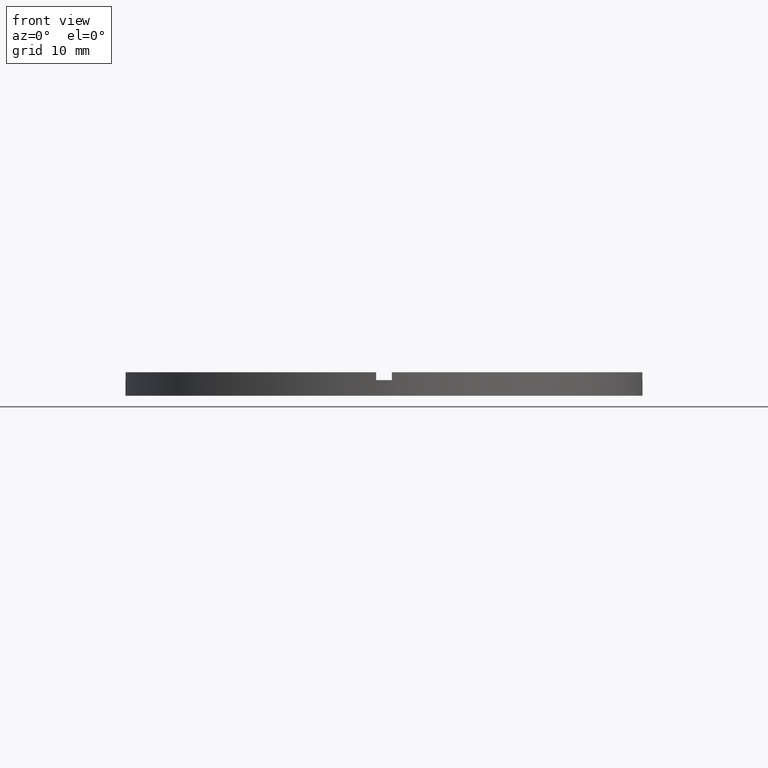
[diagram: clean part render]
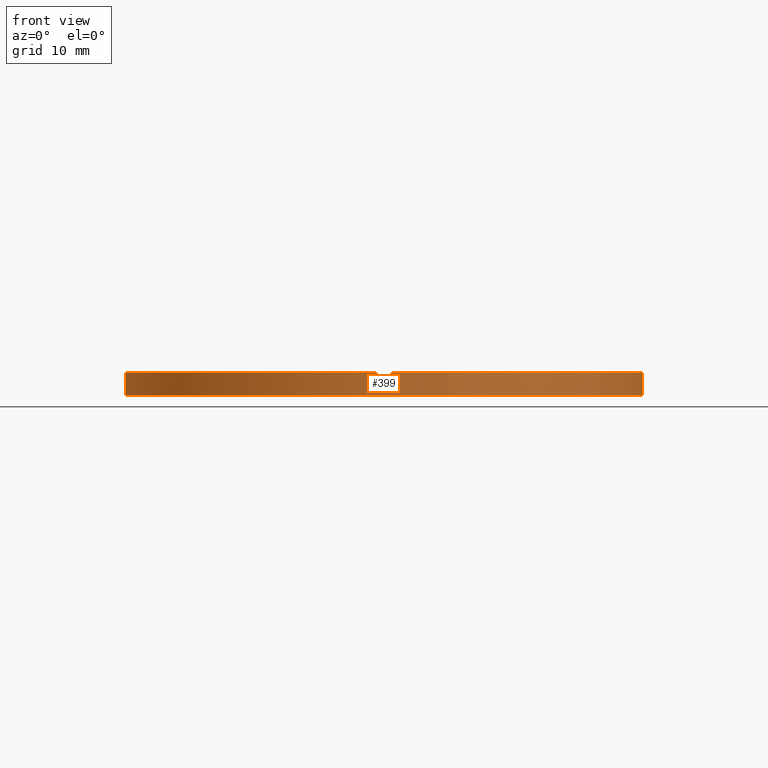
[diagram: same view with one face highlighted and labeled with its STEP entity id]
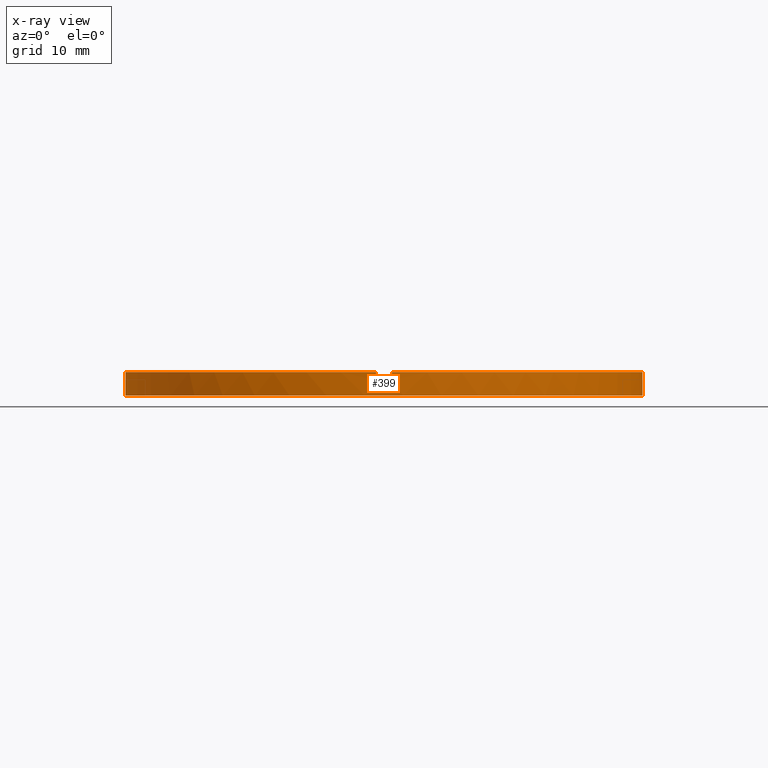
[diagram: x-ray of the same camera — body ghosted, the highlighted face saturated]
A machine part, front view. The second image highlights one B-rep face of the part: STEP entity #399.
The next image is the same camera in x-ray: the body ghosted, the highlighted face saturated — about 0% of this face is hidden behind the body in this view.
In plain terms, the highlighted cylindrical surface (partial cylindrical patch) has radius 33 mm, axis along (-0, -0, -1).
Its self-contained STEP definition (entity closure, byte-faithful):
#4 = DIRECTION ( 'NONE',  ( 0.000000000000000000, 0.000000000000000000, 1.000000000000000000 ) ) ;
#8 = EDGE_CURVE ( 'NONE', #237, #100, #144, .T. ) ;
#13 = DIRECTION ( 'NONE',  ( 1.000000000000000000, 0.000000000000000000, 0.000000000000000000 ) ) ;
#25 = ORIENTED_EDGE ( 'NONE', *, *, #500, .T. ) ;
#30 = DIRECTION ( 'NONE',  ( 1.000000000000000000, 0.000000000000000000, 0.000000000000000000 ) ) ;
#31 = ORIENTED_EDGE ( 'NONE', *, *, #497, .F. ) ;
#36 = CARTESIAN_POINT ( 'NONE',  ( 0.000000000000000000, 0.000000000000000000, 2.000000000000000000 ) ) ;
#40 = CIRCLE ( 'NONE', #687, 33.00000000000000000 ) ;
#52 = AXIS2_PLACEMENT_3D ( 'NONE', #756, #466, #13 ) ;
#54 = CIRCLE ( 'NONE', #240, 33.00000000000000000 ) ;
#55 = LINE ( 'NONE', #604, #82 ) ;
#63 = VECTOR ( 'NONE', #197, 1000.000000000000000 ) ;
#66 = LINE ( 'NONE', #693, #337 ) ;
#67 = CIRCLE ( 'NONE', #767, 33.00000000000000000 ) ;
#69 = FACE_OUTER_BOUND ( 'NONE', #189, .T. ) ;
#70 = DIRECTION ( 'NONE',  ( -0.000000000000000000, 0.000000000000000000, 1.000000000000000000 ) ) ;
#74 = LINE ( 'NONE', #202, #63 ) ;
#82 = VECTOR ( 'NONE', #777, 1000.000000000000000 ) ;
#89 = ORIENTED_EDGE ( 'NONE', *, *, #292, .F. ) ;
#90 = CIRCLE ( 'NONE', #352, 33.00000000000000000 ) ;
#94 = LINE ( 'NONE', #759, #581 ) ;
#97 = EDGE_CURVE ( 'NONE', #237, #755, #143, .T. ) ;
#100 = VERTEX_POINT ( 'NONE', #505 ) ;
#108 = VERTEX_POINT ( 'NONE', #164 ) ;
#135 = ORIENTED_EDGE ( 'NONE', *, *, #403, .F. ) ;
#141 = DIRECTION ( 'NONE',  ( 1.000000000000000000, 0.000000000000000000, 0.000000000000000000 ) ) ;
#143 = CIRCLE ( 'NONE', #441, 33.00000000000000000 ) ;
#144 = LINE ( 'NONE', #453, #406 ) ;
#154 = CARTESIAN_POINT ( 'NONE',  ( -1.000000000000160982, -32.98484500494128469, 3.000000000000000000 ) ) ;
#159 = CARTESIAN_POINT ( 'NONE',  ( 0.000000000000000000, 0.000000000000000000, 2.000000000000000000 ) ) ;
#164 = CARTESIAN_POINT ( 'NONE',  ( 32.98484500494128469, -1.000000000000158318, 2.000000000000000000 ) ) ;
#172 = DIRECTION ( 'NONE',  ( 1.000000000000000000, 0.000000000000000000, 0.000000000000000000 ) ) ;
#179 = EDGE_CURVE ( 'NONE', #108, #380, #54, .T. ) ;
#189 = EDGE_LOOP ( 'NONE', ( #31, #651, #25, #461, #706, #135, #719, #89, #665, #395, #615, #386 ) ) ;
#197 = DIRECTION ( 'NONE',  ( -0.000000000000000000, -0.000000000000000000, -1.000000000000000000 ) ) ;
#200 = EDGE_CURVE ( 'NONE', #565, #557, #94, .T. ) ;
#202 = CARTESIAN_POINT ( 'NONE',  ( 33.00000000000000000, 4.041334437186266200E-15, 3.000000000000000000 ) ) ;
#203 = DIRECTION ( 'NONE',  ( 1.000000000000000000, 0.000000000000000000, 0.000000000000000000 ) ) ;
#209 = DIRECTION ( 'NONE',  ( 1.000000000000000000, 0.000000000000000000, 0.000000000000000000 ) ) ;
#210 = EDGE_CURVE ( 'NONE', #289, #391, #55, .T. ) ;
#237 = VERTEX_POINT ( 'NONE', #769 ) ;
#239 = DIRECTION ( 'NONE',  ( -0.000000000000000000, -0.000000000000000000, -1.000000000000000000 ) ) ;
#240 = AXIS2_PLACEMENT_3D ( 'NONE', #36, #774, #141 ) ;
#278 = DIRECTION ( 'NONE',  ( -0.000000000000000000, -0.000000000000000000, -1.000000000000000000 ) ) ;
#289 = VERTEX_POINT ( 'NONE', #521 ) ;
#290 = VECTOR ( 'NONE', #428, 1000.000000000000000 ) ;
#292 = EDGE_CURVE ( 'NONE', #565, #366, #90, .T. ) ;
#297 = LINE ( 'NONE', #462, #290 ) ;
#330 = CYLINDRICAL_SURFACE ( 'NONE', #411, 33.00000000000000000 ) ;
#331 = CIRCLE ( 'NONE', #52, 33.00000000000000000 ) ;
#337 = VECTOR ( 'NONE', #740, 1000.000000000000000 ) ;
#346 = VERTEX_POINT ( 'NONE', #506 ) ;
#352 = AXIS2_PLACEMENT_3D ( 'NONE', #720, #764, #172 ) ;
#366 = VERTEX_POINT ( 'NONE', #154 ) ;
#380 = VERTEX_POINT ( 'NONE', #692 ) ;
#385 = DIRECTION ( 'NONE',  ( -1.000000000000000000, 0.000000000000000000, 0.000000000000000000 ) ) ;
#386 = ORIENTED_EDGE ( 'NONE', *, *, #532, .T. ) ;
#391 = VERTEX_POINT ( 'NONE', #780 ) ;
#395 = ORIENTED_EDGE ( 'NONE', *, *, #460, .F. ) ;
#399 = ADVANCED_FACE ( 'NONE', ( #69 ), #330, .T. ) ;
#403 = EDGE_CURVE ( 'NONE', #458, #100, #67, .T. ) ;
#406 = VECTOR ( 'NONE', #504, 1000.000000000000000 ) ;
#411 = AXIS2_PLACEMENT_3D ( 'NONE', #700, #278, #385 ) ;
#420 = CARTESIAN_POINT ( 'NONE',  ( -1.000000000000160982, -32.98484500494128469, 2.000000000000000000 ) ) ;
#428 = DIRECTION ( 'NONE',  ( 0.000000000000000000, 0.000000000000000000, 1.000000000000000000 ) ) ;
#441 = AXIS2_PLACEMENT_3D ( 'NONE', #745, #4, #209 ) ;
#453 = CARTESIAN_POINT ( 'NONE',  ( 0.9999999999998391287, -32.98484500494129179, 3.000000000000000000 ) ) ;
#458 = VERTEX_POINT ( 'NONE', #420 ) ;
#460 = EDGE_CURVE ( 'NONE', #289, #557, #331, .T. ) ;
#461 = ORIENTED_EDGE ( 'NONE', *, *, #97, .F. ) ;
#462 = CARTESIAN_POINT ( 'NONE',  ( -1.000000000000160982, -32.98484500494128469, 3.000000000000000000 ) ) ;
#466 = DIRECTION ( 'NONE',  ( 0.000000000000000000, 0.000000000000000000, 1.000000000000000000 ) ) ;
#497 = EDGE_CURVE ( 'NONE', #380, #346, #74, .T. ) ;
#500 = EDGE_CURVE ( 'NONE', #108, #755, #66, .T. ) ;
#504 = DIRECTION ( 'NONE',  ( -0.000000000000000000, -0.000000000000000000, -1.000000000000000000 ) ) ;
#505 = CARTESIAN_POINT ( 'NONE',  ( 0.9999999999998391287, -32.98484500494129179, 2.000000000000000000 ) ) ;
#506 = CARTESIAN_POINT ( 'NONE',  ( 33.00000000000000000, 4.041334437186266200E-15, 0.000000000000000000 ) ) ;
#519 = CARTESIAN_POINT ( 'NONE',  ( 0.000000000000000000, 0.000000000000000000, 0.000000000000000000 ) ) ;
#521 = CARTESIAN_POINT ( 'NONE',  ( -33.00000000000000000, 0.000000000000000000, 2.000000000000000000 ) ) ;
#526 = DIRECTION ( 'NONE',  ( 0.000000000000000000, 0.000000000000000000, 1.000000000000000000 ) ) ;
#532 = EDGE_CURVE ( 'NONE', #391, #346, #40, .T. ) ;
#557 = VERTEX_POINT ( 'NONE', #768 ) ;
#565 = VERTEX_POINT ( 'NONE', #666 ) ;
#581 = VECTOR ( 'NONE', #239, 1000.000000000000000 ) ;
#604 = CARTESIAN_POINT ( 'NONE',  ( -33.00000000000000000, 0.000000000000000000, 3.000000000000000000 ) ) ;
#615 = ORIENTED_EDGE ( 'NONE', *, *, #210, .T. ) ;
#651 = ORIENTED_EDGE ( 'NONE', *, *, #179, .F. ) ;
#665 = ORIENTED_EDGE ( 'NONE', *, *, #200, .T. ) ;
#666 = CARTESIAN_POINT ( 'NONE',  ( -32.98484500494128469, -1.000000000000026201, 3.000000000000000000 ) ) ;
#687 = AXIS2_PLACEMENT_3D ( 'NONE', #519, #526, #30 ) ;
#692 = CARTESIAN_POINT ( 'NONE',  ( 33.00000000000000000, 4.041334437186266200E-15, 2.000000000000000000 ) ) ;
#693 = CARTESIAN_POINT ( 'NONE',  ( 32.98484500494128469, -1.000000000000158318, 3.000000000000000000 ) ) ;
#694 = EDGE_CURVE ( 'NONE', #458, #366, #297, .T. ) ;
#700 = CARTESIAN_POINT ( 'NONE',  ( 0.000000000000000000, 0.000000000000000000, 3.000000000000000000 ) ) ;
#706 = ORIENTED_EDGE ( 'NONE', *, *, #8, .T. ) ;
#719 = ORIENTED_EDGE ( 'NONE', *, *, #694, .T. ) ;
#720 = CARTESIAN_POINT ( 'NONE',  ( 0.000000000000000000, 0.000000000000000000, 3.000000000000000000 ) ) ;
#733 = CARTESIAN_POINT ( 'NONE',  ( 32.98484500494128469, -1.000000000000158318, 3.000000000000000000 ) ) ;
#740 = DIRECTION ( 'NONE',  ( 0.000000000000000000, 0.000000000000000000, 1.000000000000000000 ) ) ;
#745 = CARTESIAN_POINT ( 'NONE',  ( 0.000000000000000000, 0.000000000000000000, 3.000000000000000000 ) ) ;
#755 = VERTEX_POINT ( 'NONE', #733 ) ;
#756 = CARTESIAN_POINT ( 'NONE',  ( 0.000000000000000000, 0.000000000000000000, 2.000000000000000000 ) ) ;
#759 = CARTESIAN_POINT ( 'NONE',  ( -32.98484500494128469, -1.000000000000026201, 3.000000000000000000 ) ) ;
#764 = DIRECTION ( 'NONE',  ( 0.000000000000000000, 0.000000000000000000, 1.000000000000000000 ) ) ;
#767 = AXIS2_PLACEMENT_3D ( 'NONE', #159, #70, #203 ) ;
#768 = CARTESIAN_POINT ( 'NONE',  ( -32.98484500494128469, -1.000000000000026201, 2.000000000000000000 ) ) ;
#769 = CARTESIAN_POINT ( 'NONE',  ( 0.9999999999998391287, -32.98484500494129179, 3.000000000000000000 ) ) ;
#774 = DIRECTION ( 'NONE',  ( 0.000000000000000000, 0.000000000000000000, 1.000000000000000000 ) ) ;
#777 = DIRECTION ( 'NONE',  ( -0.000000000000000000, -0.000000000000000000, -1.000000000000000000 ) ) ;
#780 = CARTESIAN_POINT ( 'NONE',  ( -33.00000000000000000, 0.000000000000000000, 0.000000000000000000 ) ) ;